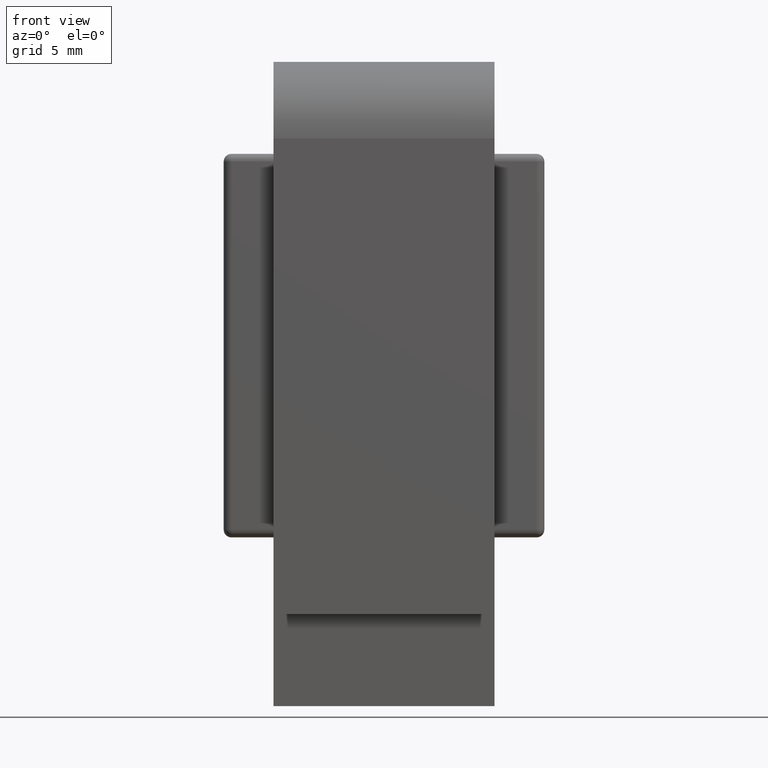
[diagram: clean part render]
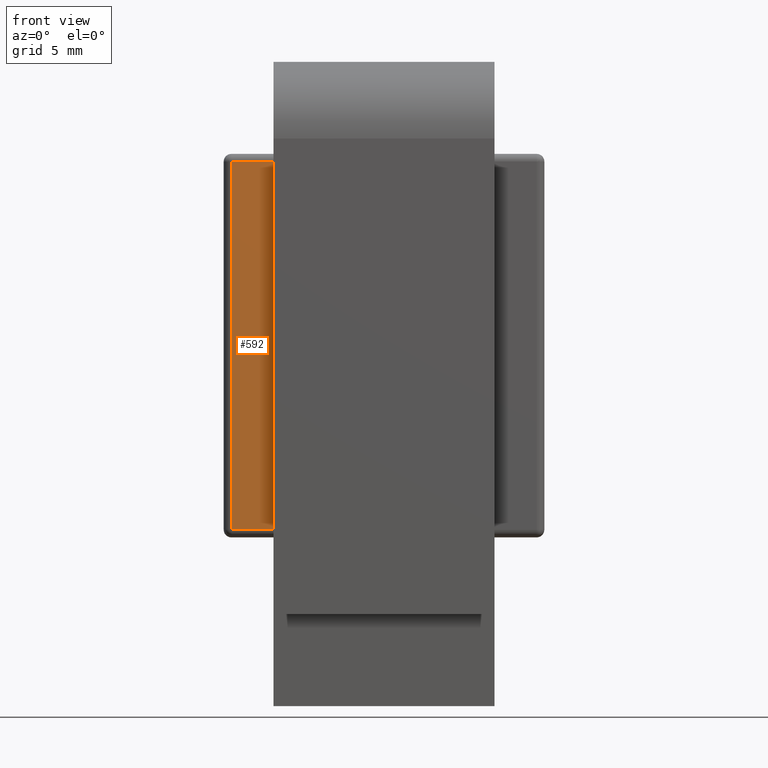
[diagram: same view with one face highlighted and labeled with its STEP entity id]
A machine part, front view. The second image highlights one B-rep face of the part: STEP entity #592.
In plain terms, the highlighted planar face has unit normal (0, 1, 0).
Its self-contained STEP definition (entity closure, byte-faithful):
#136 = EDGE_LOOP ( 'NONE', ( #4504, #6044, #5020, #5978 ) ) ;
#509 = DIRECTION ( 'NONE',  ( 0.0000000000000000000, 1.000000000000000000, -0.0000000000000000000 ) ) ;
#592 = ADVANCED_FACE ( 'NONE', ( #7075 ), #5162, .F. ) ;
#659 = VERTEX_POINT ( 'NONE', #5325 ) ;
#736 = CARTESIAN_POINT ( 'NONE',  ( -2.750000000000000900, -2.300000000000002900, 4.999999999999997300 ) ) ;
#911 = VECTOR ( 'NONE', #2470, 1000.000000000000000 ) ;
#934 = VECTOR ( 'NONE', #9935, 1000.000000000000000 ) ;
#960 = DIRECTION ( 'NONE',  ( 0.0000000000000000000, 0.0000000000000000000, 1.000000000000000000 ) ) ;
#1280 = LINE ( 'NONE', #1701, #911 ) ;
#1701 = CARTESIAN_POINT ( 'NONE',  ( -3.249999999999999600, -2.300000000000002900, 29.50000000000000000 ) ) ;
#1728 = CARTESIAN_POINT ( 'NONE',  ( 0.0000000000000000000, -2.300000000000002900, 4.999999999999997300 ) ) ;
#1992 = VERTEX_POINT ( 'NONE', #3058 ) ;
#2106 = CARTESIAN_POINT ( 'NONE',  ( -3.249999999999999600, -2.300000000000002900, 4.999999999999997300 ) ) ;
#2398 = DIRECTION ( 'NONE',  ( 1.000000000000000000, -0.0000000000000000000, 0.0000000000000000000 ) ) ;
#2470 = DIRECTION ( 'NONE',  ( -1.000000000000000000, -0.0000000000000000000, -0.0000000000000000000 ) ) ;
#2482 = CARTESIAN_POINT ( 'NONE',  ( -2.750000000000000900, -2.300000000000002900, 29.50000000000000000 ) ) ;
#2829 = VERTEX_POINT ( 'NONE', #2482 ) ;
#3058 = CARTESIAN_POINT ( 'NONE',  ( 0.0000000000000000000, -2.300000000000002900, 29.50000000000000000 ) ) ;
#3160 = CARTESIAN_POINT ( 'NONE',  ( -3.249999999999999600, -2.300000000000002900, 5.499999999999998200 ) ) ;
#3347 = CARTESIAN_POINT ( 'NONE',  ( -2.750000000000000900, -2.300000000000002900, 5.499999999999998200 ) ) ;
#3521 = EDGE_CURVE ( 'NONE', #659, #1992, #3739, .T. ) ;
#3739 = LINE ( 'NONE', #1728, #9330 ) ;
#4504 = ORIENTED_EDGE ( 'NONE', *, *, #4934, .T. ) ;
#4541 = VECTOR ( 'NONE', #2398, 1000.000000000000000 ) ;
#4934 = EDGE_CURVE ( 'NONE', #2829, #7469, #8589, .T. ) ;
#5010 = EDGE_CURVE ( 'NONE', #7469, #659, #9559, .T. ) ;
#5020 = ORIENTED_EDGE ( 'NONE', *, *, #3521, .T. ) ;
#5162 = PLANE ( 'NONE',  #5778 ) ;
#5325 = CARTESIAN_POINT ( 'NONE',  ( 0.0000000000000000000, -2.300000000000002900, 5.499999999999998200 ) ) ;
#5778 = AXIS2_PLACEMENT_3D ( 'NONE', #2106, #509, #6637 ) ;
#5978 = ORIENTED_EDGE ( 'NONE', *, *, #7764, .T. ) ;
#6044 = ORIENTED_EDGE ( 'NONE', *, *, #5010, .T. ) ;
#6637 = DIRECTION ( 'NONE',  ( 0.0000000000000000000, 0.0000000000000000000, 1.000000000000000000 ) ) ;
#7075 = FACE_OUTER_BOUND ( 'NONE', #136, .T. ) ;
#7469 = VERTEX_POINT ( 'NONE', #3347 ) ;
#7764 = EDGE_CURVE ( 'NONE', #1992, #2829, #1280, .T. ) ;
#8589 = LINE ( 'NONE', #736, #934 ) ;
#9330 = VECTOR ( 'NONE', #960, 1000.000000000000000 ) ;
#9559 = LINE ( 'NONE', #3160, #4541 ) ;
#9935 = DIRECTION ( 'NONE',  ( 0.0000000000000000000, -0.0000000000000000000, -1.000000000000000000 ) ) ;